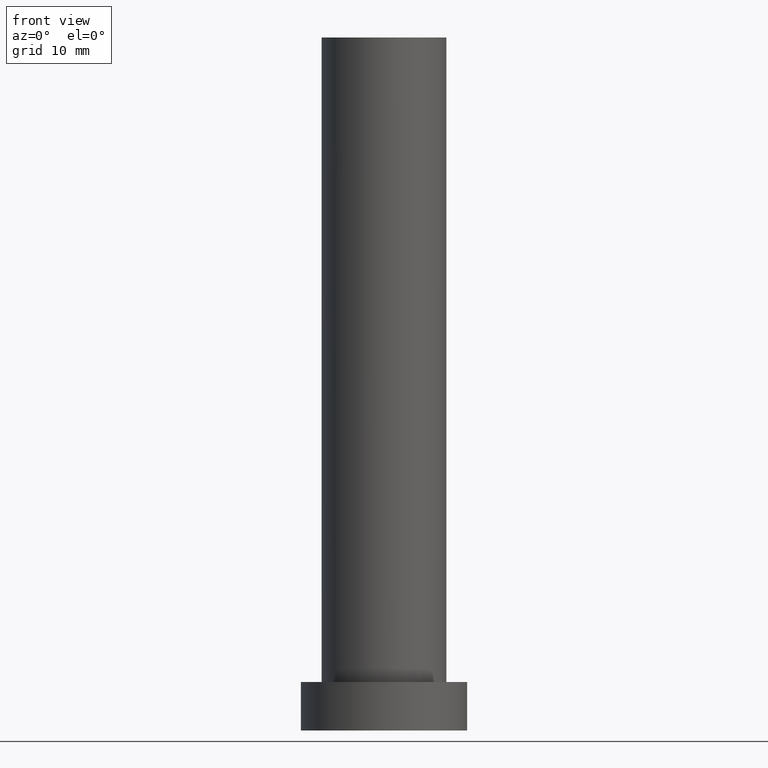
[diagram: clean part render]
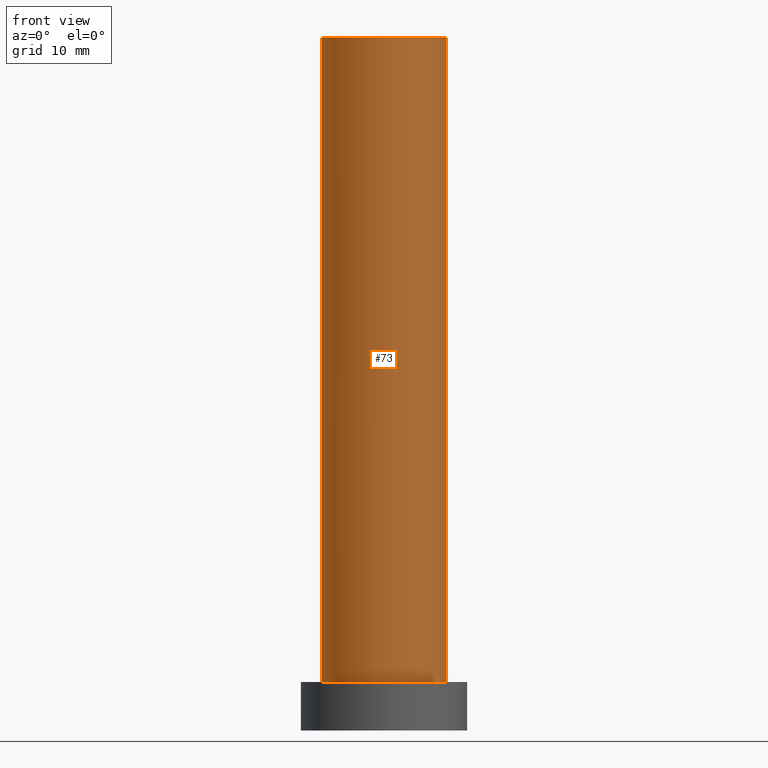
[diagram: same view with one face highlighted and labeled with its STEP entity id]
A machine part, front view. The second image highlights one B-rep face of the part: STEP entity #73.
In plain terms, the highlighted cylindrical surface (partial cylindrical patch) has radius 9 mm, axis along (-0, -0, -1).
Its self-contained STEP definition (entity closure, byte-faithful):
#3 = EDGE_CURVE ( 'NONE', #214, #246, #176, .T. ) ;
#4 = DIRECTION ( 'NONE',  ( -1.000000000000000000, 0.000000000000000000, 0.000000000000000000 ) ) ;
#8 = CIRCLE ( 'NONE', #39, 9.000000000000000000 ) ;
#14 = ORIENTED_EDGE ( 'NONE', *, *, #57, .F. ) ;
#18 = CARTESIAN_POINT ( 'NONE',  ( 0.000000000000000000, 0.000000000000000000, 100.0000000000000000 ) ) ;
#29 = VECTOR ( 'NONE', #121, 1000.000000000000000 ) ;
#36 = ORIENTED_EDGE ( 'NONE', *, *, #159, .T. ) ;
#39 = AXIS2_PLACEMENT_3D ( 'NONE', #241, #112, #184 ) ;
#56 = ORIENTED_EDGE ( 'NONE', *, *, #3, .T. ) ;
#57 = EDGE_CURVE ( 'NONE', #214, #217, #8, .T. ) ;
#65 = DIRECTION ( 'NONE',  ( 0.000000000000000000, 0.000000000000000000, 1.000000000000000000 ) ) ;
#67 = DIRECTION ( 'NONE',  ( 1.000000000000000000, 0.000000000000000000, 0.000000000000000000 ) ) ;
#68 = CARTESIAN_POINT ( 'NONE',  ( -9.000000000000000000, 0.000000000000000000, 100.0000000000000000 ) ) ;
#72 = VERTEX_POINT ( 'NONE', #153 ) ;
#73 = ADVANCED_FACE ( 'NONE', ( #254 ), #156, .T. ) ;
#78 = DIRECTION ( 'NONE',  ( -0.000000000000000000, -0.000000000000000000, -1.000000000000000000 ) ) ;
#82 = CARTESIAN_POINT ( 'NONE',  ( -9.000000000000000000, 0.000000000000000000, 7.000000000000000000 ) ) ;
#89 = EDGE_LOOP ( 'NONE', ( #177, #14, #56, #36 ) ) ;
#100 = CARTESIAN_POINT ( 'NONE',  ( 9.000000000000000000, 1.102182119232617517E-15, 100.0000000000000000 ) ) ;
#104 = DIRECTION ( 'NONE',  ( -0.000000000000000000, -0.000000000000000000, -1.000000000000000000 ) ) ;
#106 = EDGE_CURVE ( 'NONE', #217, #72, #194, .T. ) ;
#112 = DIRECTION ( 'NONE',  ( 0.000000000000000000, 0.000000000000000000, 1.000000000000000000 ) ) ;
#114 = CIRCLE ( 'NONE', #205, 9.000000000000000000 ) ;
#121 = DIRECTION ( 'NONE',  ( -0.000000000000000000, -0.000000000000000000, -1.000000000000000000 ) ) ;
#138 = AXIS2_PLACEMENT_3D ( 'NONE', #18, #78, #4 ) ;
#153 = CARTESIAN_POINT ( 'NONE',  ( 9.000000000000000000, 1.102182119232617517E-15, 7.000000000000000000 ) ) ;
#156 = CYLINDRICAL_SURFACE ( 'NONE', #138, 9.000000000000000000 ) ;
#159 = EDGE_CURVE ( 'NONE', #246, #72, #114, .T. ) ;
#176 = LINE ( 'NONE', #249, #247 ) ;
#177 = ORIENTED_EDGE ( 'NONE', *, *, #106, .F. ) ;
#184 = DIRECTION ( 'NONE',  ( 1.000000000000000000, 0.000000000000000000, 0.000000000000000000 ) ) ;
#190 = CARTESIAN_POINT ( 'NONE',  ( 0.000000000000000000, 0.000000000000000000, 7.000000000000000000 ) ) ;
#192 = CARTESIAN_POINT ( 'NONE',  ( 9.000000000000000000, 1.102182119232617517E-15, 100.0000000000000000 ) ) ;
#194 = LINE ( 'NONE', #100, #29 ) ;
#205 = AXIS2_PLACEMENT_3D ( 'NONE', #190, #65, #67 ) ;
#214 = VERTEX_POINT ( 'NONE', #68 ) ;
#217 = VERTEX_POINT ( 'NONE', #192 ) ;
#241 = CARTESIAN_POINT ( 'NONE',  ( 0.000000000000000000, 0.000000000000000000, 100.0000000000000000 ) ) ;
#246 = VERTEX_POINT ( 'NONE', #82 ) ;
#247 = VECTOR ( 'NONE', #104, 1000.000000000000000 ) ;
#249 = CARTESIAN_POINT ( 'NONE',  ( -9.000000000000000000, 0.000000000000000000, 100.0000000000000000 ) ) ;
#254 = FACE_OUTER_BOUND ( 'NONE', #89, .T. ) ;